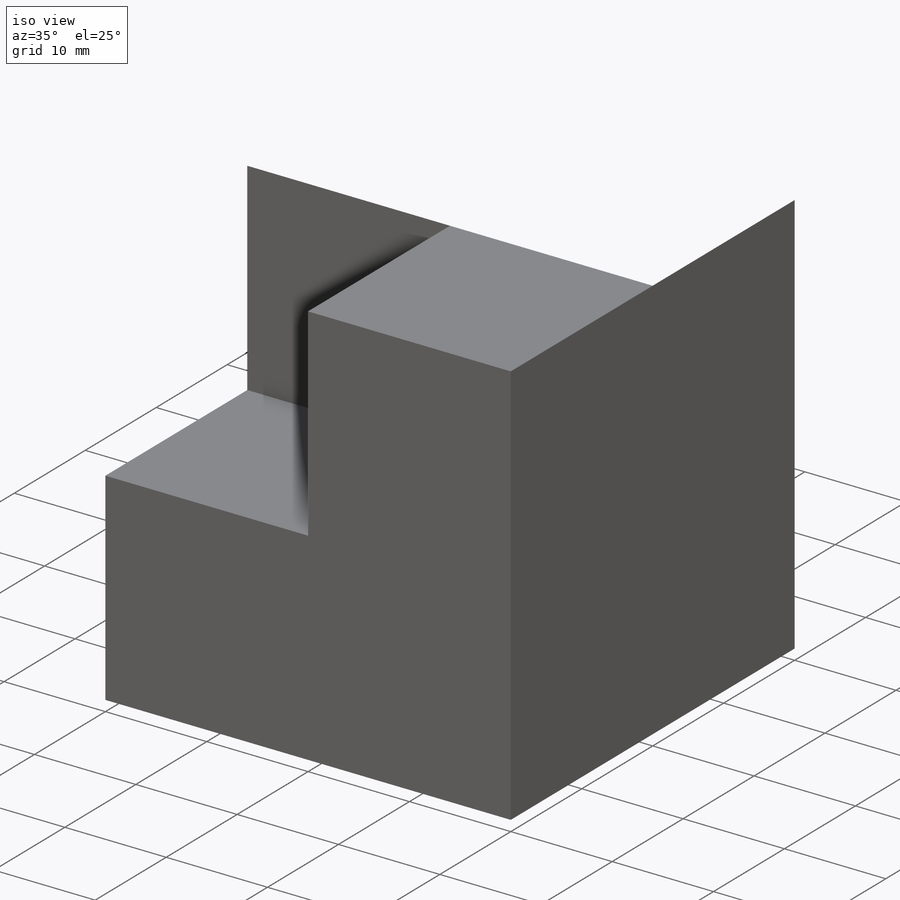
[diagram: iso view]
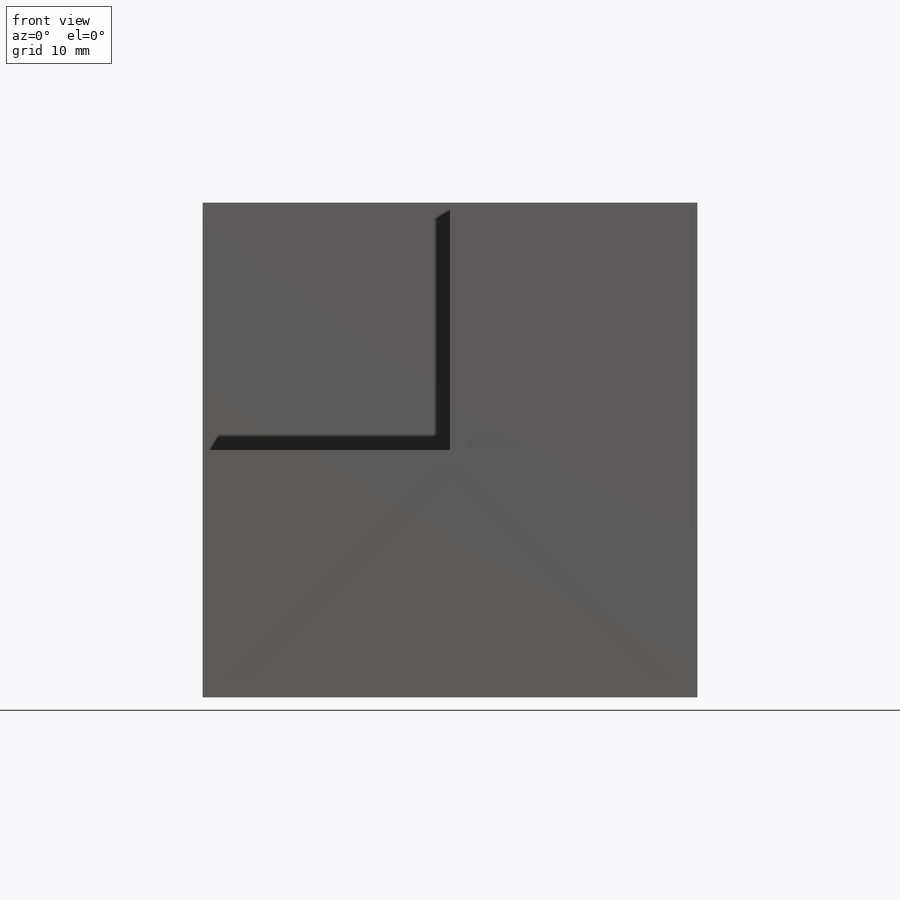
[diagram: front view]
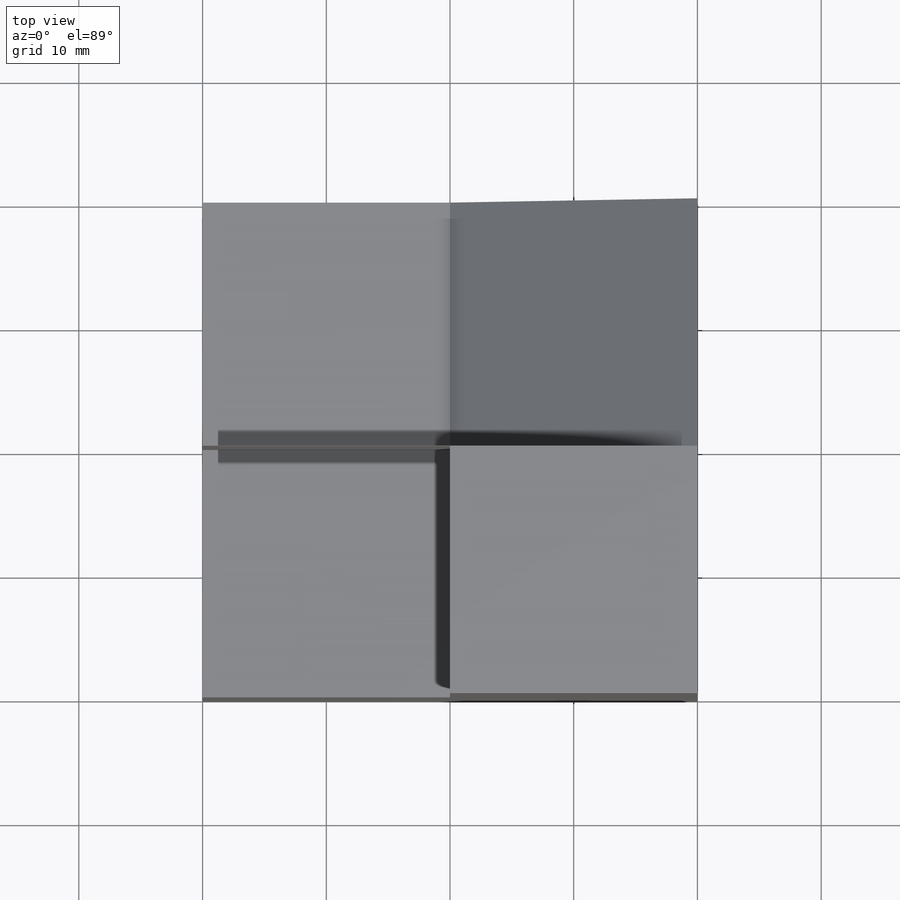
[diagram: top view]
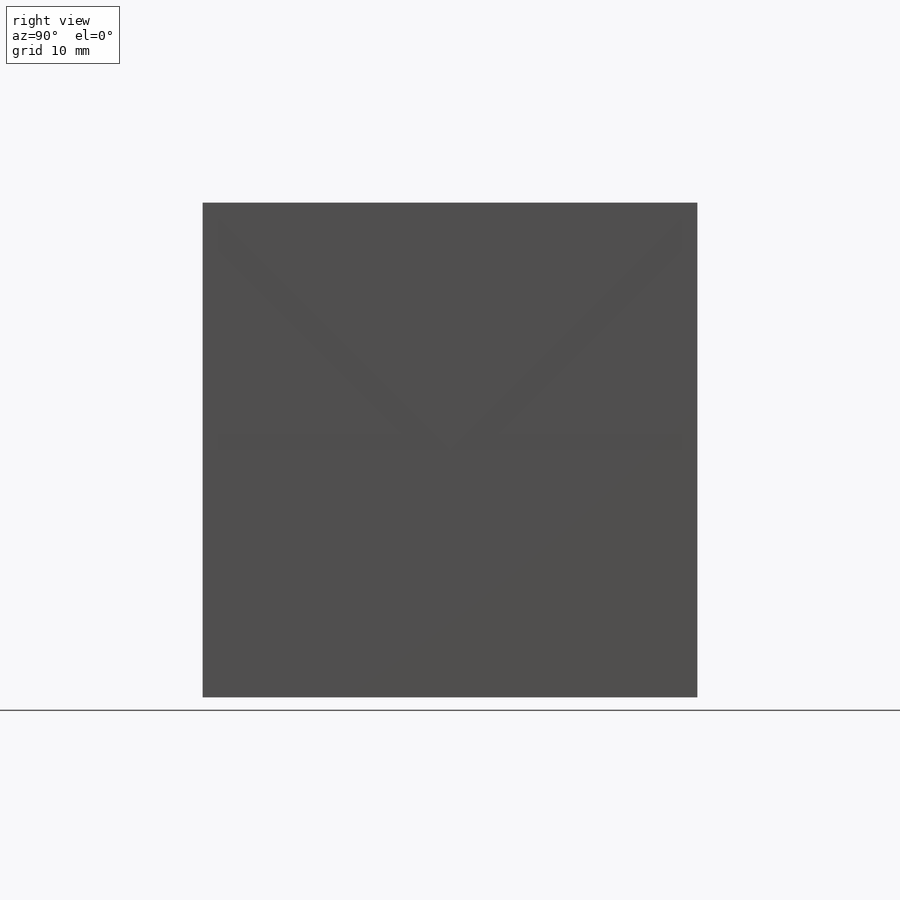
[diagram: right view]
SOLIDWORKS PART (.sldprt)
format: sldprt  version: not decoded by parser v0  size: 320,000 bytes
history: native  units: mm
features: sketch x18, cut_extrude x12, extrude x5, plane x3, material x1 (+13 scaffold rows collapsed)
feature tree (52):
  scaffold x13  (default folders/planes/origin — collapsed)
  material  "Material <not specified>"
  sketch  "Sketch1"  dims[D1=40.0mm D2=40.0mm]
  extrude  "Boss-Extrude1"  Depth=40mm
  sketch  "Sketch2"  dims[D1=20.0mm D2=20.0mm]
  cut_extrude  "Cut-Extrude1"  Depth=20mm
  sketch  "Sketch3"
  cut_extrude  "Cut-Extrude2"  Depth=10mm
  plane  "Plane1"
  plane  "Plane2"
  sketch  "Sketch7"  dims[D1=20.0mm D2=20.0mm]
  cut_extrude  "Cut-Extrude7"  Depth=10mm
  sketch  "Sketch8"
  extrude  "Boss-Extrude2"  Depth=10mm
  sketch  "Sketch9"
  cut_extrude  "Cut-Extrude8"  Depth=10mm
  sketch  "Sketch10"
  cut_extrude  "Cut-Extrude9"  Depth=5mm
  plane  "Plane3"
  sketch  "Sketch12"  dims[D1=19.999mm D2=19.999mm]
  cut_extrude  "Cut-Extrude13"  Depth=10mm
  sketch  "Sketch13"  dims[D1=20.0mm D2=20.0mm]
  cut_extrude  "Cut-Extrude15"  Depth=20mm
  sketch  "Sketch14"
  cut_extrude  "Cut-Extrude16"  Depth=0.001mm
  sketch  "Sketch16"
  cut_extrude  "Cut-Extrude21"  Depth=0.001mm
  sketch  "Sketch17"
  extrude  "Boss-Extrude5"  Depth=14.999mm
  sketch  "Sketch18"  dims[D1=19.999mm]
  cut_extrude  "Cut-Extrude23"  Depth=0.0001mm
  sketch  "Sketch19"
  sketch  "Sketch20"
  extrude  "Boss-Extrude6"  Depth=0.0001mm
  sketch  "Sketch21"
  cut_extrude  "Cut-Extrude25"  Depth=9.998mm
  sketch  "Sketch22"
  extrude  "Boss-Extrude7"  Depth=9.998mm
  sketch  "Sketch23"  dims[D1=20.0mm D2=19.999mm]
  cut_extrude  "Cut-Extrude26"  Depth=0.0001mm
decode coverage: 24 of 35 modeling features carry decoded parameters
note: suppression state not decoded; provenance and decode notes live in map.json
